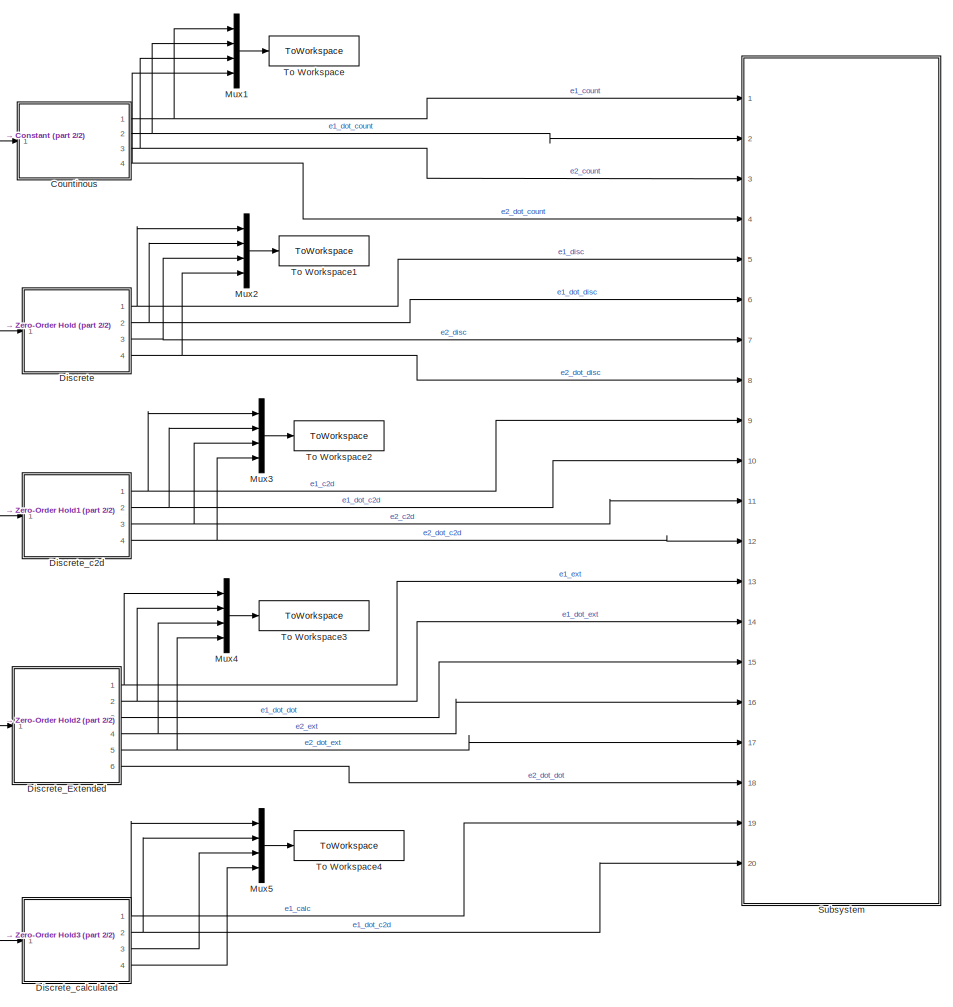
[diagram: root canvas - part 1/2, right side, full height]
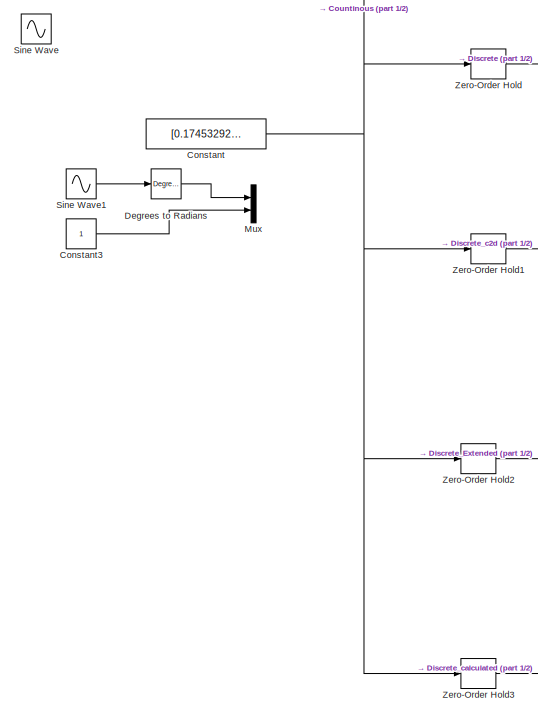
[diagram: root canvas - part 2/2, middle left region]
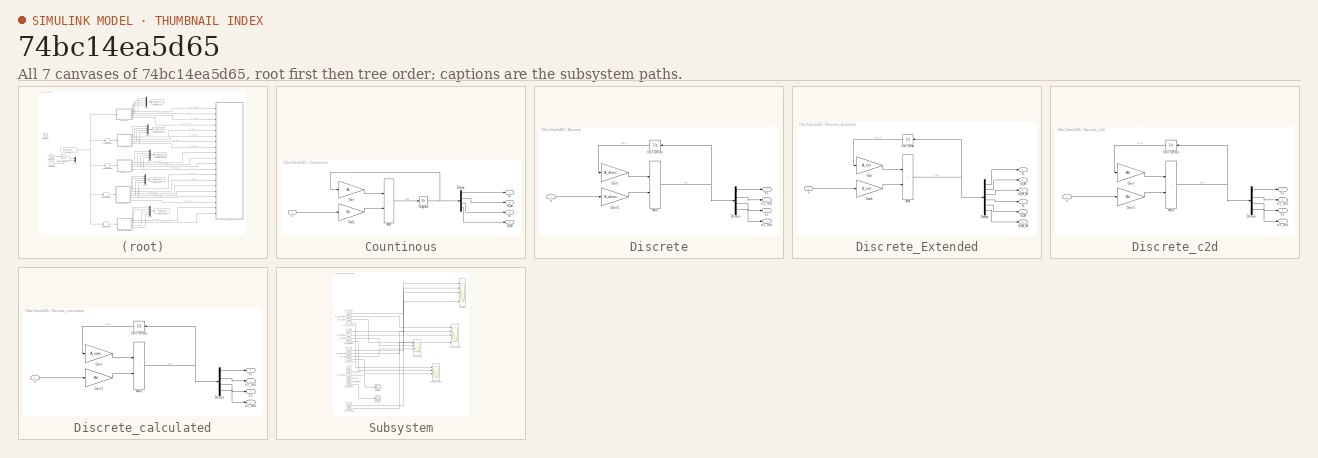
[diagram: thumbnail index - all 7 canvases of the model, root first then tree order]
MODEL slx_74bc14ea5d65
KIND model
CONFIG AbsTol = auto
CONFIG EnableMultiTasking = off
CONFIG FixedStep = auto
CONFIG MaxStep = auto
CONFIG MinStep = auto
CONFIG RelTol = 1e-3
CONFIG SampleTimeConstraint = Unconstrained
CONFIG SolverName = VariableStepAuto
CONFIG StartTime = 0.0
CONFIG StopTime = 2
BLOCK [Constant] Constant
  Value = [0.1745329252; 1]
BLOCK [Constant] Constant3
BLOCK [SubSystem] Countinous
  Ports = [1, 4]
  RequestExecContextInheritance = off
BLOCK [Sum] Countinous/Add
  IconShape = rectangular
  Ports = [2, 1]
BLOCK [Demux] Countinous/Demux
  Ports = [1, 4]
BLOCK [Gain] Countinous/Gain
  Gain = Ac
  Multiplication = Matrix(K*u)
BLOCK [Gain] Countinous/Gain1
  Gain = Bc
  Multiplication = Matrix(K*u)
BLOCK [Integrator] Countinous/Integrator
  Ports = [1, 1]
BLOCK [Outport] Countinous/e1
BLOCK [Outport] Countinous/e1_dot
  Port = 2
BLOCK [Outport] Countinous/e2
  Port = 3
BLOCK [Outport] Countinous/e2_dot
  Port = 4
BLOCK [Inport] Countinous/u
BLOCK [Reference] Degrees to Radians  REF=simulink_extras/Transformations/Degrees to
Radians
  Ports = [1, 1]
  SourceBlock = simulink_extras/Transformations/Degrees to\nRadians
  SourceProductBaseCode = SL
  SourceType = DegreesToRadians
BLOCK [SubSystem] Discrete
  Ports = [1, 4]
  RequestExecContextInheritance = off
BLOCK [Sum] Discrete/Add
  IconShape = rectangular
  Ports = [2, 1]
BLOCK [Demux] Discrete/Demux
  Ports = [1, 4]
BLOCK [Gain] Discrete/Gain
  Gain = A_discret
  Multiplication = Matrix(K*u)
BLOCK [Gain] Discrete/Gain1
  Gain = B_discret
  Multiplication = Matrix(K*u)
BLOCK [UnitDelay] Discrete/Unit Delay
  HasFrameUpgradeWarning = on
  SampleTime = T
BLOCK [Outport] Discrete/e1
BLOCK [Outport] Discrete/e1_dot
  Port = 2
BLOCK [Outport] Discrete/e2
  Port = 3
BLOCK [Outport] Discrete/e2_dot
  Port = 4
BLOCK [Inport] Discrete/u
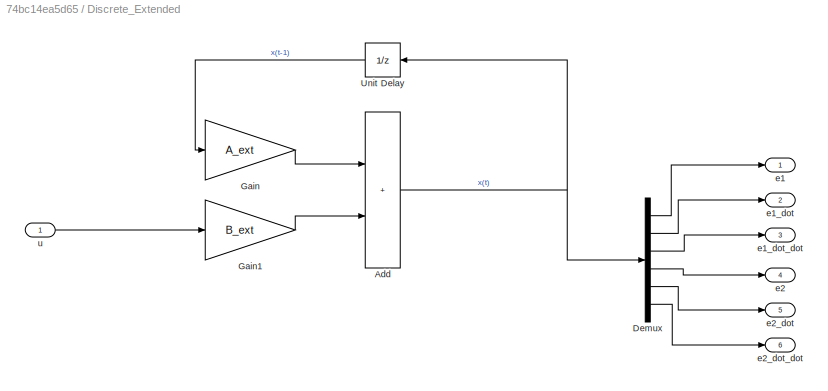
BLOCK [SubSystem] Discrete_Extended
  Ports = [1, 6]
  RequestExecContextInheritance = off
BLOCK [Sum] Discrete_Extended/Add
  IconShape = rectangular
  Ports = [2, 1]
BLOCK [Demux] Discrete_Extended/Demux
  Outputs = 6
  Ports = [1, 6]
BLOCK [Gain] Discrete_Extended/Gain
  Gain = A_ext
  Multiplication = Matrix(K*u)
BLOCK [Gain] Discrete_Extended/Gain1
  Gain = B_ext
  Multiplication = Matrix(K*u)
BLOCK [UnitDelay] Discrete_Extended/Unit Delay
  HasFrameUpgradeWarning = on
  SampleTime = T
BLOCK [Outport] Discrete_Extended/e1
BLOCK [Outport] Discrete_Extended/e1_dot
  Port = 2
BLOCK [Outport] Discrete_Extended/e1_dot_dot
  Port = 3
BLOCK [Outport] Discrete_Extended/e2
  Port = 4
BLOCK [Outport] Discrete_Extended/e2_dot
  Port = 5
BLOCK [Outport] Discrete_Extended/e2_dot_dot
  Port = 6
BLOCK [Inport] Discrete_Extended/u
BLOCK [SubSystem] Discrete_c2d
  Ports = [1, 4]
  RequestExecContextInheritance = off
BLOCK [Sum] Discrete_c2d/Add
  IconShape = rectangular
  Ports = [2, 1]
BLOCK [Demux] Discrete_c2d/Demux
  Ports = [1, 4]
BLOCK [Gain] Discrete_c2d/Gain
  Gain = Ad
  Multiplication = Matrix(K*u)
BLOCK [Gain] Discrete_c2d/Gain1
  Gain = Bd
  Multiplication = Matrix(K*u)
BLOCK [UnitDelay] Discrete_c2d/Unit Delay
  HasFrameUpgradeWarning = on
  SampleTime = T
BLOCK [Outport] Discrete_c2d/e1
BLOCK [Outport] Discrete_c2d/e1_dot
  Port = 2
BLOCK [Outport] Discrete_c2d/e2
  Port = 3
BLOCK [Outport] Discrete_c2d/e2_dot
  Port = 4
BLOCK [Inport] Discrete_c2d/u
BLOCK [SubSystem] Discrete_calculated
  Ports = [1, 4]
  RequestExecContextInheritance = off
BLOCK [Sum] Discrete_calculated/Add
  IconShape = rectangular
  Ports = [2, 1]
BLOCK [Demux] Discrete_calculated/Demux
  Ports = [1, 4]
BLOCK [Gain] Discrete_calculated/Gain
  Gain = A_calc
  Multiplication = Matrix(K*u)
BLOCK [Gain] Discrete_calculated/Gain1
  Gain = Bd
  Multiplication = Matrix(K*u)
BLOCK [UnitDelay] Discrete_calculated/Unit Delay
  HasFrameUpgradeWarning = on
  SampleTime = T
BLOCK [Outport] Discrete_calculated/e1
BLOCK [Outport] Discrete_calculated/e1_dot
  Port = 2
BLOCK [Outport] Discrete_calculated/e2
  Port = 3
BLOCK [Outport] Discrete_calculated/e2_dot
  Port = 4
BLOCK [Inport] Discrete_calculated/u
BLOCK [Mux] Mux
  DisplayOption = bar
  Inputs = 2
  Ports = [2, 1]
BLOCK [Mux] Mux1
  DisplayOption = bar
  Ports = [4, 1]
BLOCK [Mux] Mux2
  DisplayOption = bar
  Ports = [4, 1]
BLOCK [Mux] Mux3
  DisplayOption = bar
  Ports = [4, 1]
BLOCK [Mux] Mux4
  DisplayOption = bar
  Ports = [4, 1]
BLOCK [Mux] Mux5
  DisplayOption = bar
  Ports = [4, 1]
BLOCK [Sin] Sine Wave
  Amplitude = 10
  Ports = [0, 1]
  SampleTime = 0
BLOCK [Sin] Sine Wave1
  Amplitude = 3
  Ports = [0, 1]
  SampleTime = 0
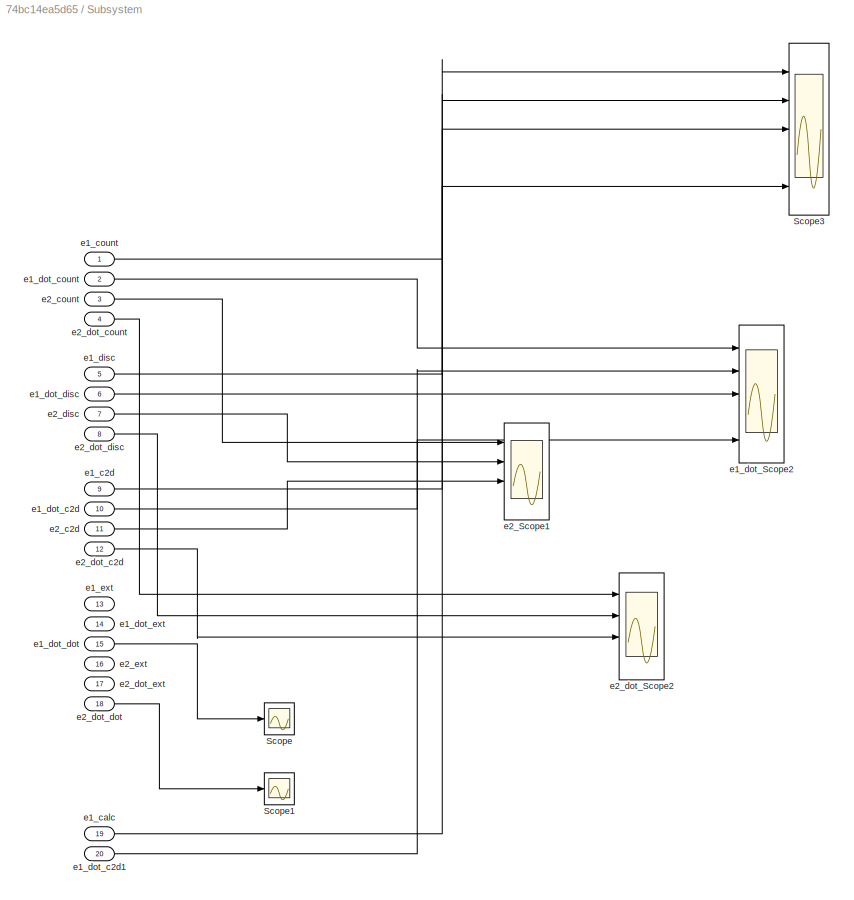
BLOCK [SubSystem] Subsystem
  Ports = [20]
  RequestExecContextInheritance = off
BLOCK [Scope] Subsystem/Scope
  Floating = off
  NumInputPorts = 1
  Ports = [1]
  ScopeSpecificationString = Simulink.scopes.TimeScopeBlockCfg('CurrentConfiguration', extmgr.ConfigurationSet(extmgr.Configuration('Core','General UI',true),extmgr.Configuration('Core','Source UI',true),extmgr.Configuration('Sources','WiredSimulink',true,'DataLoggingVariableName','ScopeData4'),extmgr.Configuration('Visuals','Time Domain',true,'SerializedDisplays',{struct('MinYLimReal','-38511.4128','MaxYLimReal','53323.39179...<+1430ch>
BLOCK [Scope] Subsystem/Scope1
  Floating = off
  NumInputPorts = 1
  Ports = [1]
  ScopeSpecificationString = Simulink.scopes.TimeScopeBlockCfg('CurrentConfiguration', extmgr.ConfigurationSet(extmgr.Configuration('Core','General UI',true),extmgr.Configuration('Core','Source UI',true),extmgr.Configuration('Sources','WiredSimulink',true,'DataLoggingVariableName','ScopeData5'),extmgr.Configuration('Visuals','Time Domain',true,'SerializedDisplays',{struct('MinYLimReal','-70107.48821','MaxYLimReal','27342.7606...<+1432ch>
BLOCK [Scope] Subsystem/Scope3
  Floating = off
  NumInputPorts = 5
  Ports = [5]
  ScopeSpecificationString = Simulink.scopes.TimeScopeBlockCfg('CurrentConfiguration', extmgr.ConfigurationSet(extmgr.Configuration('Core','General UI',true),extmgr.Configuration('Core','Source UI',true),extmgr.Configuration('Sources','WiredSimulink',true,'DataLoggingVariableName','ScopeData2'),extmgr.Configuration('Visuals','Time Domain',true,'SerializedDisplays',{struct('MinYLimReal','-42.47059','MaxYLimReal','34.28811','YL...<+1605ch>
BLOCK [Inport] Subsystem/e1_c2d
  Port = 9
BLOCK [Inport] Subsystem/e1_calc
  Port = 19
BLOCK [Inport] Subsystem/e1_count
BLOCK [Inport] Subsystem/e1_disc
  Port = 5
BLOCK [Scope] Subsystem/e1_dot_Scope2
  Floating = off
  NumInputPorts = 5
  Ports = [5]
  ScopeSpecificationString = Simulink.scopes.TimeScopeBlockCfg('CurrentConfiguration', extmgr.ConfigurationSet(extmgr.Configuration('Core','General UI',true),extmgr.Configuration('Core','Source UI',true),extmgr.Configuration('Sources','WiredSimulink',true,'DataLoggingVariableName','ScopeData1'),extmgr.Configuration('Visuals','Time Domain',true,'SerializedDisplays',{struct('MinYLimReal','-68233237248736174625956395651108635656...<+3403ch>
BLOCK [Inport] Subsystem/e1_dot_c2d
  Port = 10
BLOCK [Inport] Subsystem/e1_dot_c2d1
  Port = 20
BLOCK [Inport] Subsystem/e1_dot_count
  Port = 2
BLOCK [Inport] Subsystem/e1_dot_disc
  Port = 6
BLOCK [Inport] Subsystem/e1_dot_dot
  Port = 15
BLOCK [Inport] Subsystem/e1_dot_ext
  Port = 14
BLOCK [Inport] Subsystem/e1_ext
  Port = 13
BLOCK [Scope] Subsystem/e2_Scope1
  Floating = off
  NumInputPorts = 4
  Ports = [4]
  ScopeSpecificationString = Simulink.scopes.TimeScopeBlockCfg('CurrentConfiguration', extmgr.ConfigurationSet(extmgr.Configuration('Core','General UI',true),extmgr.Configuration('Core','Source UI',true),extmgr.Configuration('Sources','WiredSimulink',true,'DataLoggingVariableName','ScopeData2'),extmgr.Configuration('Visuals','Time Domain',true,'SerializedDisplays',{struct('MinYLimReal','2.16079','MaxYLimReal','2.17636','YLabe...<+1477ch>
BLOCK [Inport] Subsystem/e2_c2d
  Port = 11
BLOCK [Inport] Subsystem/e2_count
  Port = 3
BLOCK [Inport] Subsystem/e2_disc
  Port = 7
BLOCK [Scope] Subsystem/e2_dot_Scope2
  Floating = off
  NumInputPorts = 4
  Ports = [4]
  ScopeSpecificationString = Simulink.scopes.TimeScopeBlockCfg('CurrentConfiguration', extmgr.ConfigurationSet(extmgr.Configuration('Core','General UI',true),extmgr.Configuration('Core','Source UI',true),extmgr.Configuration('Sources','WiredSimulink',true,'DataLoggingVariableName','ScopeData3'),extmgr.Configuration('Visuals','Time Domain',true,'SerializedDisplays',{struct('MinYLimReal','-82.36453','MaxYLimReal','115.5794','YL...<+1473ch>
BLOCK [Inport] Subsystem/e2_dot_c2d
  Port = 12
BLOCK [Inport] Subsystem/e2_dot_count
  Port = 4
BLOCK [Inport] Subsystem/e2_dot_disc
  Port = 8
BLOCK [Inport] Subsystem/e2_dot_dot
  Port = 18
BLOCK [Inport] Subsystem/e2_dot_ext
  Port = 17
BLOCK [Inport] Subsystem/e2_ext
  Port = 16
BLOCK [ToWorkspace] To Workspace
  FixptAsFi = on
  MaxDataPoints = inf
  Ports = [1]
  SampleTime = T
  SaveFormat = Timeseries
  VariableName = countinous_state
BLOCK [ToWorkspace] To Workspace1
  FixptAsFi = on
  MaxDataPoints = inf
  Ports = [1]
  SampleTime = T
  SaveFormat = Timeseries
  VariableName = discrete_state
BLOCK [ToWorkspace] To Workspace2
  FixptAsFi = on
  MaxDataPoints = inf
  Ports = [1]
  SampleTime = T
  SaveFormat = Timeseries
  VariableName = discrete_c2d_state
BLOCK [ToWorkspace] To Workspace3
  FixptAsFi = on
  MaxDataPoints = inf
  Ports = [1]
  SampleTime = T
  SaveFormat = Timeseries
  VariableName = discrete_extended_state
BLOCK [ToWorkspace] To Workspace4
  FixptAsFi = on
  MaxDataPoints = inf
  Ports = [1]
  SampleTime = T
  SaveFormat = Timeseries
  VariableName = discrete_calculated_state
BLOCK [ZeroOrderHold] Zero-Order Hold
  SampleTime = T
BLOCK [ZeroOrderHold] Zero-Order Hold1
  SampleTime = T
BLOCK [ZeroOrderHold] Zero-Order Hold2
  SampleTime = T
BLOCK [ZeroOrderHold] Zero-Order Hold3
  SampleTime = T
LINE Constant3:1 -> Mux:2
NET Constant:1 -> Countinous:1, Zero-Order Hold1:1, Zero-Order Hold2:1, Zero-Order Hold3:1, Zero-Order Hold:1
LINE Countinous/Add:1 -> Countinous/Integrator:1
LINE Countinous/Demux:1 -> Countinous/e1:1
LINE Countinous/Demux:2 -> Countinous/e1_dot:1
LINE Countinous/Demux:3 -> Countinous/e2:1
LINE Countinous/Demux:4 -> Countinous/e2_dot:1
LINE Countinous/Gain1:1 -> Countinous/Add:2
LINE Countinous/Gain:1 -> Countinous/Add:1
NET Countinous/Integrator:1 -> Countinous/Demux:1, Countinous/Gain:1
LINE Countinous/u:1 -> Countinous/Gain1:1
NET Countinous:1 -> Mux1:1, Subsystem:1
NET Countinous:2 -> Mux1:2, Subsystem:2
NET Countinous:3 -> Mux1:3, Subsystem:3
NET Countinous:4 -> Mux1:4, Subsystem:4
LINE Degrees to Radians:1 -> Mux:1
NET Discrete/Add:1 -> Discrete/Demux:1, Discrete/Unit Delay:1
LINE Discrete/Demux:1 -> Discrete/e1:1
LINE Discrete/Demux:2 -> Discrete/e1_dot:1
LINE Discrete/Demux:3 -> Discrete/e2:1
LINE Discrete/Demux:4 -> Discrete/e2_dot:1
LINE Discrete/Gain1:1 -> Discrete/Add:2
LINE Discrete/Gain:1 -> Discrete/Add:1
LINE Discrete/Unit Delay:1 -> Discrete/Gain:1
LINE Discrete/u:1 -> Discrete/Gain1:1
NET Discrete:1 -> Mux2:1, Subsystem:5
NET Discrete:2 -> Mux2:2, Subsystem:6
NET Discrete:3 -> Mux2:3, Subsystem:7
NET Discrete:4 -> Mux2:4, Subsystem:8
NET Discrete_Extended/Add:1 -> Discrete_Extended/Demux:1, Discrete_Extended/Unit Delay:1
LINE Discrete_Extended/Demux:1 -> Discrete_Extended/e1:1
LINE Discrete_Extended/Demux:2 -> Discrete_Extended/e1_dot:1
LINE Discrete_Extended/Demux:3 -> Discrete_Extended/e1_dot_dot:1
LINE Discrete_Extended/Demux:4 -> Discrete_Extended/e2:1
LINE Discrete_Extended/Demux:5 -> Discrete_Extended/e2_dot:1
LINE Discrete_Extended/Demux:6 -> Discrete_Extended/e2_dot_dot:1
LINE Discrete_Extended/Gain1:1 -> Discrete_Extended/Add:2
LINE Discrete_Extended/Gain:1 -> Discrete_Extended/Add:1
LINE Discrete_Extended/Unit Delay:1 -> Discrete_Extended/Gain:1
LINE Discrete_Extended/u:1 -> Discrete_Extended/Gain1:1
NET Discrete_Extended:1 -> Mux4:1, Subsystem:13
NET Discrete_Extended:2 -> Mux4:2, Subsystem:14
LINE Discrete_Extended:3 -> Subsystem:15
NET Discrete_Extended:4 -> Mux4:3, Subsystem:16
NET Discrete_Extended:5 -> Mux4:4, Subsystem:17
LINE Discrete_Extended:6 -> Subsystem:18
NET Discrete_c2d/Add:1 -> Discrete_c2d/Demux:1, Discrete_c2d/Unit Delay:1
LINE Discrete_c2d/Demux:1 -> Discrete_c2d/e1:1
LINE Discrete_c2d/Demux:2 -> Discrete_c2d/e1_dot:1
LINE Discrete_c2d/Demux:3 -> Discrete_c2d/e2:1
LINE Discrete_c2d/Demux:4 -> Discrete_c2d/e2_dot:1
LINE Discrete_c2d/Gain1:1 -> Discrete_c2d/Add:2
LINE Discrete_c2d/Gain:1 -> Discrete_c2d/Add:1
LINE Discrete_c2d/Unit Delay:1 -> Discrete_c2d/Gain:1
LINE Discrete_c2d/u:1 -> Discrete_c2d/Gain1:1
NET Discrete_c2d:1 -> Mux3:1, Subsystem:9
NET Discrete_c2d:2 -> Mux3:2, Subsystem:10
NET Discrete_c2d:3 -> Mux3:3, Subsystem:11
NET Discrete_c2d:4 -> Mux3:4, Subsystem:12
NET Discrete_calculated/Add:1 -> Discrete_calculated/Demux:1, Discrete_calculated/Unit Delay:1
LINE Discrete_calculated/Demux:1 -> Discrete_calculated/e1:1
LINE Discrete_calculated/Demux:2 -> Discrete_calculated/e1_dot:1
LINE Discrete_calculated/Demux:3 -> Discrete_calculated/e2:1
LINE Discrete_calculated/Demux:4 -> Discrete_calculated/e2_dot:1
LINE Discrete_calculated/Gain1:1 -> Discrete_calculated/Add:2
LINE Discrete_calculated/Gain:1 -> Discrete_calculated/Add:1
LINE Discrete_calculated/Unit Delay:1 -> Discrete_calculated/Gain:1
LINE Discrete_calculated/u:1 -> Discrete_calculated/Gain1:1
NET Discrete_calculated:1 -> Mux5:1, Subsystem:19
NET Discrete_calculated:2 -> Mux5:2, Subsystem:20
LINE Discrete_calculated:3 -> Mux5:3
LINE Discrete_calculated:4 -> Mux5:4
LINE Mux1:1 -> To Workspace:1
LINE Mux2:1 -> To Workspace1:1
LINE Mux3:1 -> To Workspace2:1
LINE Mux4:1 -> To Workspace3:1
LINE Mux5:1 -> To Workspace4:1
LINE Sine Wave1:1 -> Degrees to Radians:1
LINE Subsystem/e1_c2d:1 -> Subsystem/Scope3:3
LINE Subsystem/e1_calc:1 -> Subsystem/Scope3:5
LINE Subsystem/e1_count:1 -> Subsystem/Scope3:1
LINE Subsystem/e1_disc:1 -> Subsystem/Scope3:2
LINE Subsystem/e1_dot_c2d1:1 -> Subsystem/e1_dot_Scope2:5
LINE Subsystem/e1_dot_c2d:1 -> Subsystem/e1_dot_Scope2:3
LINE Subsystem/e1_dot_count:1 -> Subsystem/e1_dot_Scope2:1
LINE Subsystem/e1_dot_disc:1 -> Subsystem/e1_dot_Scope2:2
LINE Subsystem/e1_dot_dot:1 -> Subsystem/Scope:1
LINE Subsystem/e2_c2d:1 -> Subsystem/e2_Scope1:3
LINE Subsystem/e2_count:1 -> Subsystem/e2_Scope1:1
LINE Subsystem/e2_disc:1 -> Subsystem/e2_Scope1:2
LINE Subsystem/e2_dot_c2d:1 -> Subsystem/e2_dot_Scope2:3
LINE Subsystem/e2_dot_count:1 -> Subsystem/e2_dot_Scope2:1
LINE Subsystem/e2_dot_disc:1 -> Subsystem/e2_dot_Scope2:2
LINE Subsystem/e2_dot_dot:1 -> Subsystem/Scope1:1
LINE Zero-Order Hold1:1 -> Discrete_c2d:1
LINE Zero-Order Hold2:1 -> Discrete_Extended:1
LINE Zero-Order Hold3:1 -> Discrete_calculated:1
LINE Zero-Order Hold:1 -> Discrete:1
note: NET lines group one-source signal fan-out (src -> all destinations, sorted); 1:1 wires keep LINE
